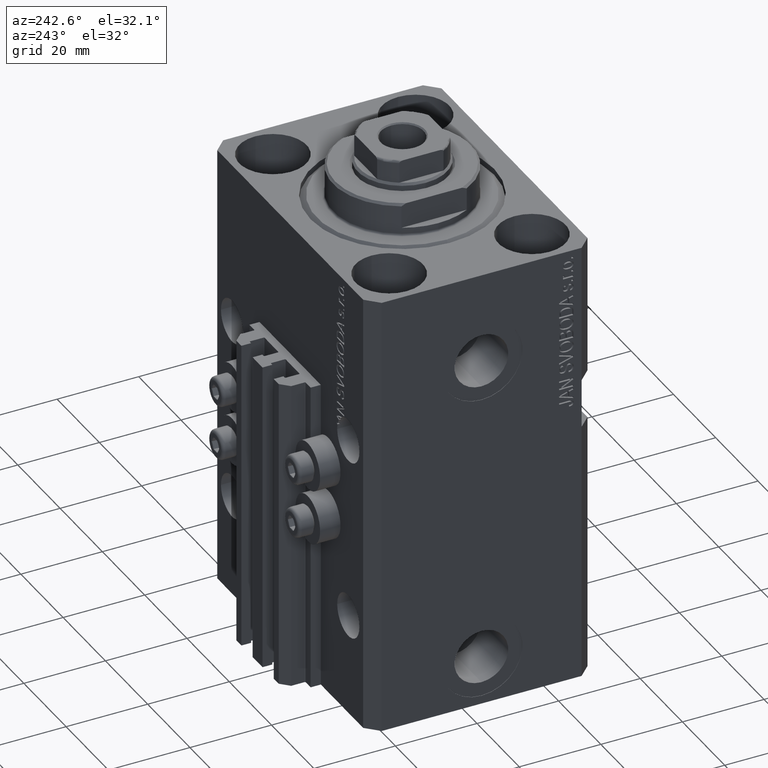
[diagram: clean part render]
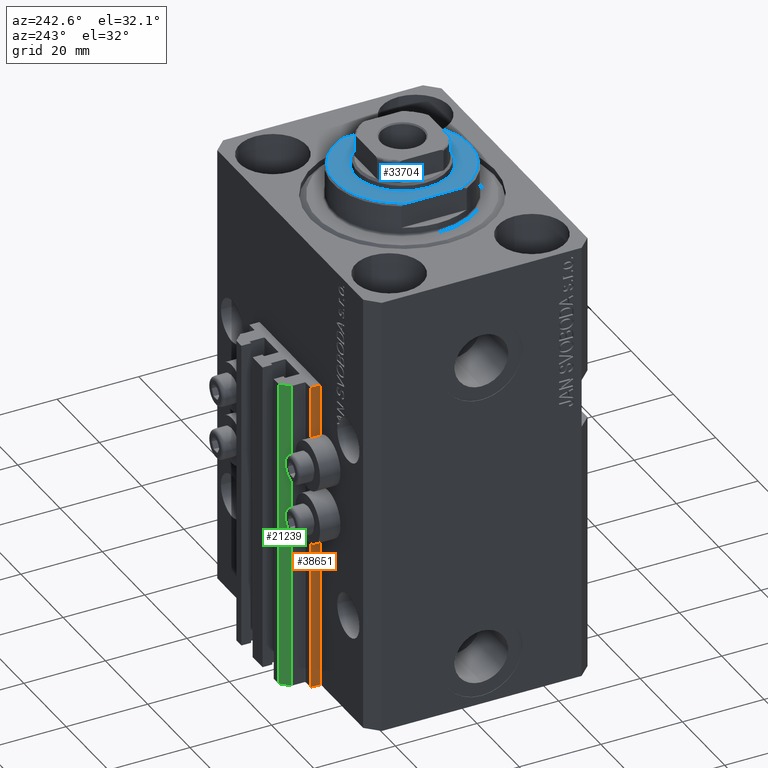
[diagram: same view with three faces highlighted in distinct colors, each labeled with its STEP entity id]
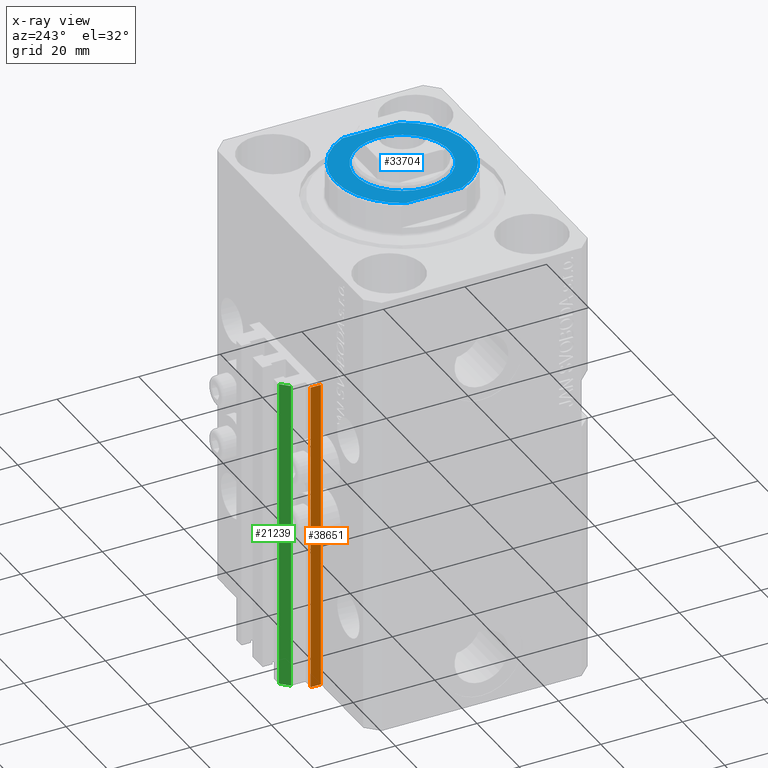
[diagram: x-ray of the same camera — body ghosted, the three highlighted faces saturated]
A machine part, auxiliary view with three faces highlighted in distinct colors.
The next image is the same camera in x-ray (body ghosted, the three faces saturated) — at least one of them is partly hidden behind the body in this view.
Their STEP definitions:

[orange] entity #38651 — the highlighted planar face has unit normal (-1, 0, 0).
#313 = CARTESIAN_POINT ( 'NONE',  ( -14.50000000000000000, 27.50000000000000355, -33.00000000000000000 ) ) ;
#647 = CARTESIAN_POINT ( 'NONE',  ( -14.50000000000000000, 29.99999999999999289, -110.0000000000000000 ) ) ;
#825 = CARTESIAN_POINT ( 'NONE',  ( -14.50000000000000000, 29.99999999999999289, -110.0000000000000000 ) ) ;
#2294 = CARTESIAN_POINT ( 'NONE',  ( -14.50000000000000000, 29.99999999999999289, -33.00000000000000000 ) ) ;
#2378 = VERTEX_POINT ( 'NONE', #313 ) ;
#2414 = DIRECTION ( 'NONE',  ( 0.000000000000000000, 0.000000000000000000, 1.000000000000000000 ) ) ;
#6259 = PLANE ( 'NONE',  #24878 ) ;
#6924 = ORIENTED_EDGE ( 'NONE', *, *, #11661, .F. ) ;
#7321 = DIRECTION ( 'NONE',  ( 0.000000000000000000, -1.000000000000000000, 0.000000000000000000 ) ) ;
#8049 = EDGE_CURVE ( 'NONE', #36892, #22578, #24405, .T. ) ;
#10290 = ORIENTED_EDGE ( 'NONE', *, *, #34186, .T. ) ;
#11661 = EDGE_CURVE ( 'NONE', #22578, #2378, #27905, .T. ) ;
#12580 = VECTOR ( 'NONE', #32063, 1000.000000000000000 ) ;
#12726 = DIRECTION ( 'NONE',  ( -1.000000000000000000, 0.000000000000000000, 0.000000000000000000 ) ) ;
#13803 = ORIENTED_EDGE ( 'NONE', *, *, #8049, .F. ) ;
#15248 = CARTESIAN_POINT ( 'NONE',  ( -14.50000000000000000, 29.99999999999999289, -110.0000000000000000 ) ) ;
#22436 = DIRECTION ( 'NONE',  ( 0.000000000000000000, 0.000000000000000000, 1.000000000000000000 ) ) ;
#22578 = VERTEX_POINT ( 'NONE', #43844 ) ;
#24405 = LINE ( 'NONE', #647, #31863 ) ;
#24878 = AXIS2_PLACEMENT_3D ( 'NONE', #45534, #12726, #2414 ) ;
#25047 = ORIENTED_EDGE ( 'NONE', *, *, #35944, .T. ) ;
#27666 = DIRECTION ( 'NONE',  ( 0.000000000000000000, -1.000000000000000000, 0.000000000000000000 ) ) ;
#27905 = LINE ( 'NONE', #2294, #32698 ) ;
#28480 = CARTESIAN_POINT ( 'NONE',  ( -14.50000000000000000, 27.50000000000000355, -110.0000000000000000 ) ) ;
#31240 = EDGE_LOOP ( 'NONE', ( #6924, #13803, #10290, #25047 ) ) ;
#31358 = LINE ( 'NONE', #46904, #12580 ) ;
#31863 = VECTOR ( 'NONE', #22436, 1000.000000000000000 ) ;
#32063 = DIRECTION ( 'NONE',  ( 0.000000000000000000, 0.000000000000000000, 1.000000000000000000 ) ) ;
#32698 = VECTOR ( 'NONE', #27666, 1000.000000000000000 ) ;
#34186 = EDGE_CURVE ( 'NONE', #36892, #40540, #41058, .T. ) ;
#34782 = VECTOR ( 'NONE', #7321, 1000.000000000000000 ) ;
#35944 = EDGE_CURVE ( 'NONE', #40540, #2378, #31358, .T. ) ;
#36892 = VERTEX_POINT ( 'NONE', #15248 ) ;
#38651 = ADVANCED_FACE ( 'NONE', ( #45773 ), #6259, .T. ) ;
#40540 = VERTEX_POINT ( 'NONE', #28480 ) ;
#41058 = LINE ( 'NONE', #825, #34782 ) ;
#43844 = CARTESIAN_POINT ( 'NONE',  ( -14.50000000000000000, 29.99999999999999289, -33.00000000000000000 ) ) ;
#45534 = CARTESIAN_POINT ( 'NONE',  ( -14.50000000000000000, 29.99999999999999289, -110.0000000000000000 ) ) ;
#45773 = FACE_OUTER_BOUND ( 'NONE', #31240, .T. ) ;
#46904 = CARTESIAN_POINT ( 'NONE',  ( -14.50000000000000000, 27.50000000000000355, -110.0000000000000000 ) ) ;

[blue] entity #33704 — the highlighted planar face has unit normal (0, 0, 1).
#716 = ORIENTED_EDGE ( 'NONE', *, *, #15185, .T. ) ;
#770 = ORIENTED_EDGE ( 'NONE', *, *, #9617, .T. ) ;
#823 = VERTEX_POINT ( 'NONE', #23642 ) ;
#1048 = EDGE_CURVE ( 'NONE', #24360, #33458, #28539, .T. ) ;
#2703 = DIRECTION ( 'NONE',  ( -0.000000000000000000, -1.000000000000000000, -0.000000000000000000 ) ) ;
#4833 = AXIS2_PLACEMENT_3D ( 'NONE', #12108, #42244, #23818 ) ;
#5718 = ORIENTED_EDGE ( 'NONE', *, *, #42086, .T. ) ;
#6078 = CARTESIAN_POINT ( 'NONE',  ( -11.50000000000000355, 0.000000000000000000, -8.000000000000000000 ) ) ;
#6761 = EDGE_CURVE ( 'NONE', #28683, #8723, #40952, .T. ) ;
#8431 = PLANE ( 'NONE',  #40103 ) ;
#8595 = CARTESIAN_POINT ( 'NONE',  ( 0.000000000000000000, 0.000000000000000000, -8.000000000000000000 ) ) ;
#8660 = CARTESIAN_POINT ( 'NONE',  ( 0.000000000000000000, 0.000000000000000000, -8.000000000000000000 ) ) ;
#8723 = VERTEX_POINT ( 'NONE', #29834 ) ;
#8894 = DIRECTION ( 'NONE',  ( -0.000000000000000000, -0.000000000000000000, 1.000000000000000000 ) ) ;
#8950 = CARTESIAN_POINT ( 'NONE',  ( 11.50000000000000355, 1.408343819019456570E-15, -8.000000000000000000 ) ) ;
#9617 = EDGE_CURVE ( 'NONE', #823, #17976, #18865, .T. ) ;
#9750 = CARTESIAN_POINT ( 'NONE',  ( 15.00000000000000000, -42.42640687119285303, -8.000000000000000000 ) ) ;
#10536 = VECTOR ( 'NONE', #27216, 1000.000000000000000 ) ;
#11936 = EDGE_CURVE ( 'NONE', #823, #8723, #34795, .T. ) ;
#12108 = CARTESIAN_POINT ( 'NONE',  ( 0.000000000000000000, 0.000000000000000000, -8.000000000000000000 ) ) ;
#12429 = DIRECTION ( 'NONE',  ( 0.000000000000000000, 0.000000000000000000, -1.000000000000000000 ) ) ;
#12833 = VECTOR ( 'NONE', #2703, 1000.000000000000000 ) ;
#15185 = EDGE_CURVE ( 'NONE', #17976, #28683, #20041, .T. ) ;
#16704 = ORIENTED_EDGE ( 'NONE', *, *, #11936, .F. ) ;
#17379 = DIRECTION ( 'NONE',  ( -1.000000000000000000, 0.000000000000000000, 0.000000000000000000 ) ) ;
#17963 = CARTESIAN_POINT ( 'NONE',  ( 0.000000000000000000, 0.000000000000000000, -8.000000000000000000 ) ) ;
#17976 = VERTEX_POINT ( 'NONE', #46634 ) ;
#18865 = CIRCLE ( 'NONE', #24989, 16.50000000000000000 ) ;
#19903 = FACE_BOUND ( 'NONE', #41374, .T. ) ;
#20041 = LINE ( 'NONE', #9750, #10536 ) ;
#20629 = DIRECTION ( 'NONE',  ( -1.000000000000000000, 0.000000000000000000, 0.000000000000000000 ) ) ;
#23024 = CARTESIAN_POINT ( 'NONE',  ( 0.000000000000000000, 0.000000000000000000, -8.000000000000000000 ) ) ;
#23642 = CARTESIAN_POINT ( 'NONE',  ( -14.99999999999999645, 6.873863542433765517, -8.000000000000000000 ) ) ;
#23818 = DIRECTION ( 'NONE',  ( -1.000000000000000000, 0.000000000000000000, 0.000000000000000000 ) ) ;
#24360 = VERTEX_POINT ( 'NONE', #8950 ) ;
#24989 = AXIS2_PLACEMENT_3D ( 'NONE', #17963, #39050, #20629 ) ;
#27074 = DIRECTION ( 'NONE',  ( -1.000000000000000000, 0.000000000000000000, 0.000000000000000000 ) ) ;
#27216 = DIRECTION ( 'NONE',  ( 0.000000000000000000, -1.000000000000000000, -0.000000000000000000 ) ) ;
#28539 = CIRCLE ( 'NONE', #4833, 11.50000000000000355 ) ;
#28683 = VERTEX_POINT ( 'NONE', #41595 ) ;
#29834 = CARTESIAN_POINT ( 'NONE',  ( -14.99999999999999645, -6.873863542433765517, -8.000000000000000000 ) ) ;
#30330 = CIRCLE ( 'NONE', #37238, 11.50000000000000355 ) ;
#30438 = DIRECTION ( 'NONE',  ( -1.000000000000000000, 0.000000000000000000, -0.000000000000000000 ) ) ;
#33458 = VERTEX_POINT ( 'NONE', #6078 ) ;
#33704 = ADVANCED_FACE ( 'NONE', ( #19903, #38565 ), #8431, .T. ) ;
#34795 = LINE ( 'NONE', #35503, #12833 ) ;
#35503 = CARTESIAN_POINT ( 'NONE',  ( -15.00000000000000000, -42.42640687119285303, -8.000000000000000000 ) ) ;
#37238 = AXIS2_PLACEMENT_3D ( 'NONE', #8660, #8894, #27074 ) ;
#37629 = DIRECTION ( 'NONE',  ( 0.000000000000000000, 0.000000000000000000, -1.000000000000000000 ) ) ;
#38565 = FACE_OUTER_BOUND ( 'NONE', #44430, .T. ) ;
#39050 = DIRECTION ( 'NONE',  ( 0.000000000000000000, 0.000000000000000000, -1.000000000000000000 ) ) ;
#40103 = AXIS2_PLACEMENT_3D ( 'NONE', #23024, #37629, #30438 ) ;
#40952 = CIRCLE ( 'NONE', #47068, 16.50000000000000000 ) ;
#41374 = EDGE_LOOP ( 'NONE', ( #5718, #41678 ) ) ;
#41595 = CARTESIAN_POINT ( 'NONE',  ( 14.99999999999999645, -6.873863542433765517, -8.000000000000000000 ) ) ;
#41596 = ORIENTED_EDGE ( 'NONE', *, *, #6761, .T. ) ;
#41678 = ORIENTED_EDGE ( 'NONE', *, *, #1048, .T. ) ;
#42086 = EDGE_CURVE ( 'NONE', #33458, #24360, #30330, .T. ) ;
#42244 = DIRECTION ( 'NONE',  ( -0.000000000000000000, -0.000000000000000000, 1.000000000000000000 ) ) ;
#44430 = EDGE_LOOP ( 'NONE', ( #770, #716, #41596, #16704 ) ) ;
#46634 = CARTESIAN_POINT ( 'NONE',  ( 14.99999999999999645, 6.873863542433765517, -8.000000000000000000 ) ) ;
#47068 = AXIS2_PLACEMENT_3D ( 'NONE', #8595, #12429, #17379 ) ;

[green] entity #21239 — the highlighted planar face has unit normal (-0.7071, 0.7071, 0).
#2685 = CARTESIAN_POINT ( 'NONE',  ( -10.00000000000000000, 35.50000000000000000, -110.0000000000000000 ) ) ;
#3631 = EDGE_CURVE ( 'NONE', #46130, #18976, #20924, .T. ) ;
#3793 = DIRECTION ( 'NONE',  ( 0.000000000000000000, 0.000000000000000000, 1.000000000000000000 ) ) ;
#4502 = LINE ( 'NONE', #19096, #8575 ) ;
#4914 = VECTOR ( 'NONE', #31932, 1000.000000000000227 ) ;
#6261 = DIRECTION ( 'NONE',  ( -0.7071067811865490160, 0.7071067811865461294, 0.000000000000000000 ) ) ;
#6494 = PLANE ( 'NONE',  #22962 ) ;
#8575 = VECTOR ( 'NONE', #3793, 1000.000000000000000 ) ;
#9507 = ORIENTED_EDGE ( 'NONE', *, *, #28641, .F. ) ;
#9890 = DIRECTION ( 'NONE',  ( -0.7071067811865460184, -0.7071067811865490160, 0.000000000000000000 ) ) ;
#13515 = CARTESIAN_POINT ( 'NONE',  ( -10.00000000000000000, 35.50000000000000000, -33.00000000000000000 ) ) ;
#16195 = ORIENTED_EDGE ( 'NONE', *, *, #26675, .T. ) ;
#17955 = CARTESIAN_POINT ( 'NONE',  ( -10.00000000000000000, 35.50000000000000000, -110.0000000000000000 ) ) ;
#18976 = VERTEX_POINT ( 'NONE', #35566 ) ;
#19096 = CARTESIAN_POINT ( 'NONE',  ( -10.00000000000000000, 35.50000000000000000, -110.0000000000000000 ) ) ;
#19861 = ORIENTED_EDGE ( 'NONE', *, *, #3631, .F. ) ;
#20924 = LINE ( 'NONE', #13515, #4914 ) ;
#21239 = ADVANCED_FACE ( 'NONE', ( #28727 ), #6494, .T. ) ;
#22855 = CARTESIAN_POINT ( 'NONE',  ( -10.00000000000000000, 35.50000000000000000, -33.00000000000000000 ) ) ;
#22962 = AXIS2_PLACEMENT_3D ( 'NONE', #17955, #6261, #25372 ) ;
#23778 = VECTOR ( 'NONE', #46169, 1000.000000000000000 ) ;
#23851 = VERTEX_POINT ( 'NONE', #29835 ) ;
#24774 = EDGE_LOOP ( 'NONE', ( #19861, #9507, #29388, #16195 ) ) ;
#25372 = DIRECTION ( 'NONE',  ( -0.7071067811865460184, -0.7071067811865489050, 0.000000000000000000 ) ) ;
#26675 = EDGE_CURVE ( 'NONE', #46770, #18976, #47088, .T. ) ;
#28641 = EDGE_CURVE ( 'NONE', #23851, #46130, #4502, .T. ) ;
#28727 = FACE_OUTER_BOUND ( 'NONE', #24774, .T. ) ;
#29388 = ORIENTED_EDGE ( 'NONE', *, *, #30071, .T. ) ;
#29835 = CARTESIAN_POINT ( 'NONE',  ( -10.00000000000000000, 35.50000000000000000, -110.0000000000000000 ) ) ;
#30071 = EDGE_CURVE ( 'NONE', #23851, #46770, #42195, .T. ) ;
#31932 = DIRECTION ( 'NONE',  ( -0.7071067811865460184, -0.7071067811865490160, 0.000000000000000000 ) ) ;
#35566 = CARTESIAN_POINT ( 'NONE',  ( -12.00000000000000000, 33.49999999999998579, -33.00000000000000000 ) ) ;
#36893 = VECTOR ( 'NONE', #9890, 1000.000000000000227 ) ;
#42195 = LINE ( 'NONE', #2685, #36893 ) ;
#44719 = CARTESIAN_POINT ( 'NONE',  ( -12.00000000000000000, 33.49999999999998579, -110.0000000000000000 ) ) ;
#46130 = VERTEX_POINT ( 'NONE', #22855 ) ;
#46169 = DIRECTION ( 'NONE',  ( 0.000000000000000000, 0.000000000000000000, 1.000000000000000000 ) ) ;
#46630 = CARTESIAN_POINT ( 'NONE',  ( -12.00000000000000000, 33.49999999999998579, -110.0000000000000000 ) ) ;
#46770 = VERTEX_POINT ( 'NONE', #44719 ) ;
#47088 = LINE ( 'NONE', #46630, #23778 ) ;